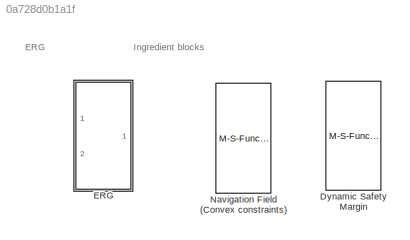
MODEL slx_0a728d0b1a1f
KIND library
CONFIG AbsTol = auto
CONFIG EnableMultiTasking = off
CONFIG FixedStep = auto
CONFIG MaxStep = auto
CONFIG MinStep = auto
CONFIG RelTol = 1e-3
CONFIG SampleTimeConstraint = Unconstrained
CONFIG Solver = VariableStepAuto
CONFIG SolverName = VariableStepAuto
CONFIG StartTime = 0.0
CONFIG StopTime = 10.0
BLOCK [M-S-Function] Dynamic Safety Margin
  FunctionName = DSM_block
  Parameters = erg_param
  Ports = [2, 1]
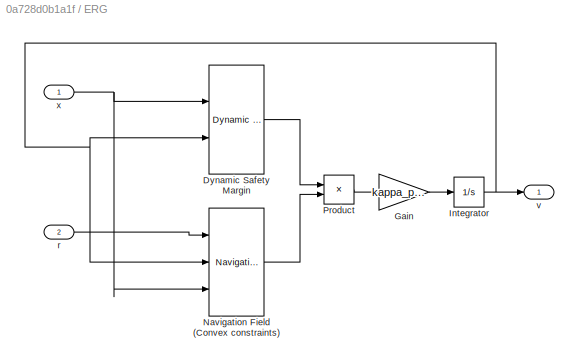
BLOCK [SubSystem] ERG
  Ports = [2, 1]
  RequestExecContextInheritance = off
BLOCK [Reference] ERG/Dynamic Safety Margin  REF=$bdroot/Dynamic Safety Margin
  Ports = [2, 1]
  SourceBlock = $bdroot/Dynamic Safety Margin
  SourceType = Dynamic Safety Margin
BLOCK [Gain] ERG/Gain
  Gain = kappa_param
  OutDataTypeStr = Inherit: Inherit via internal rule
  ParamDataTypeStr = Inherit: Inherit via internal rule
  SaturateOnIntegerOverflow = off
BLOCK [Integrator] ERG/Integrator
  InitialCondition = erg_param.C*x0
  Ports = [1, 1]
BLOCK [Reference] ERG/Navigation Field (Convex constraints)  REF=$bdroot/Navigation Field
(Convex constraints)
  Ports = [3, 1]
  SourceBlock = $bdroot/Navigation Field\n(Convex constraints)
  SourceType = Navigation Field (Convex constraints)
BLOCK [Product] ERG/Product
  InputSameDT = off
  OutDataTypeStr = Inherit: Inherit via internal rule
  Ports = [2, 1]
  RndMeth = Floor
  SaturateOnIntegerOverflow = off
BLOCK [Inport] ERG/r
  IconDisplay = Port number
  Port = 2
BLOCK [Outport] ERG/v
  IconDisplay = Port number
BLOCK [Inport] ERG/x
  IconDisplay = Port number
BLOCK [M-S-Function] Navigation Field (Convex constraints)
  FunctionName = rho_block
  Parameters = erg_param
  Ports = [3, 1]
ANNOTATION (root): ERG
ANNOTATION (root): Ingredient blocks
LINE ERG/Dynamic Safety Margin:1 -> ERG/Product:1
LINE ERG/Gain:1 -> ERG/Integrator:1
NET ERG/Integrator:1 -> ERG/Dynamic Safety Margin:2, ERG/Navigation Field (Convex constraints):2, ERG/v:1
LINE ERG/Navigation Field (Convex constraints):1 -> ERG/Product:2
LINE ERG/Product:1 -> ERG/Gain:1
LINE ERG/r:1 -> ERG/Navigation Field (Convex constraints):1
NET ERG/x:1 -> ERG/Dynamic Safety Margin:1, ERG/Navigation Field (Convex constraints):3
note: NET lines group one-source signal fan-out (src -> all destinations, sorted); 1:1 wires keep LINE
